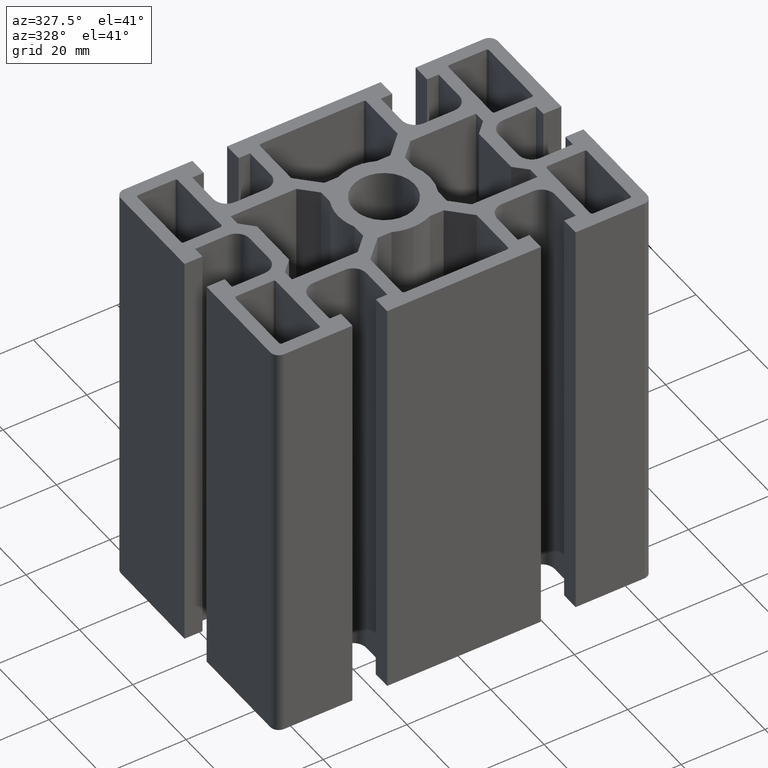
[diagram: clean part render]
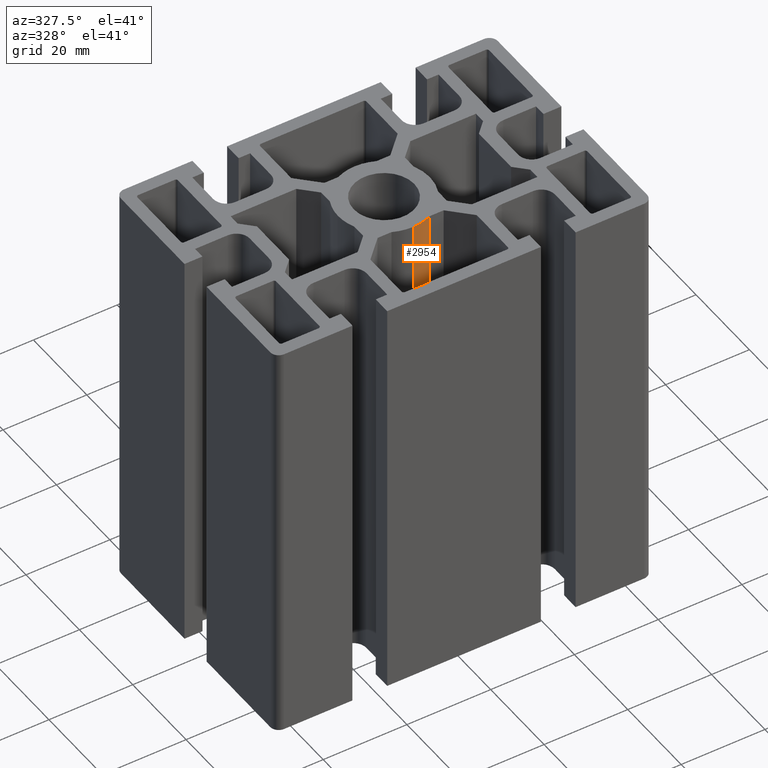
[diagram: same view with one face highlighted and labeled with its STEP entity id]
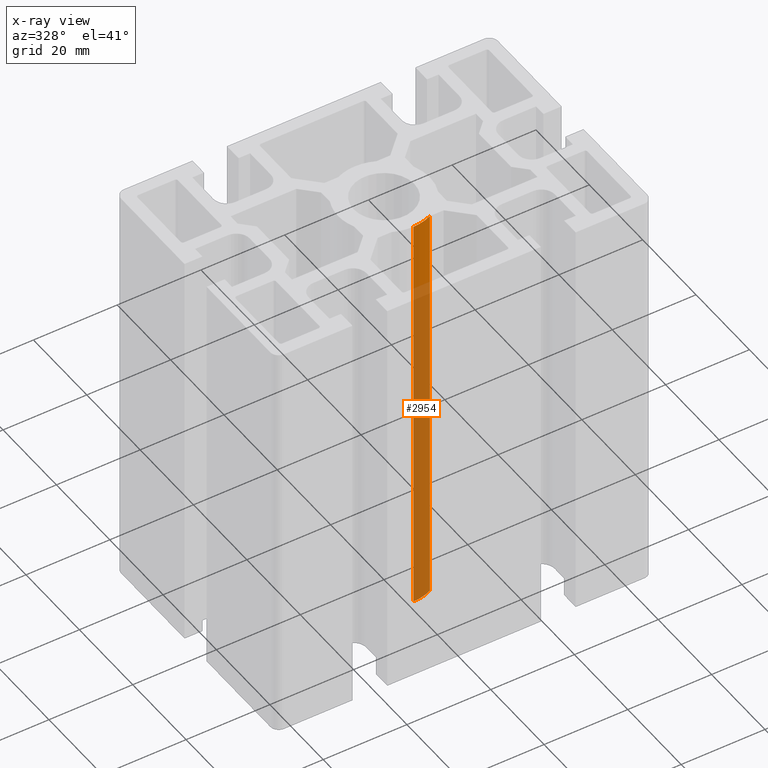
[diagram: x-ray of the same camera — body ghosted, the highlighted face saturated]
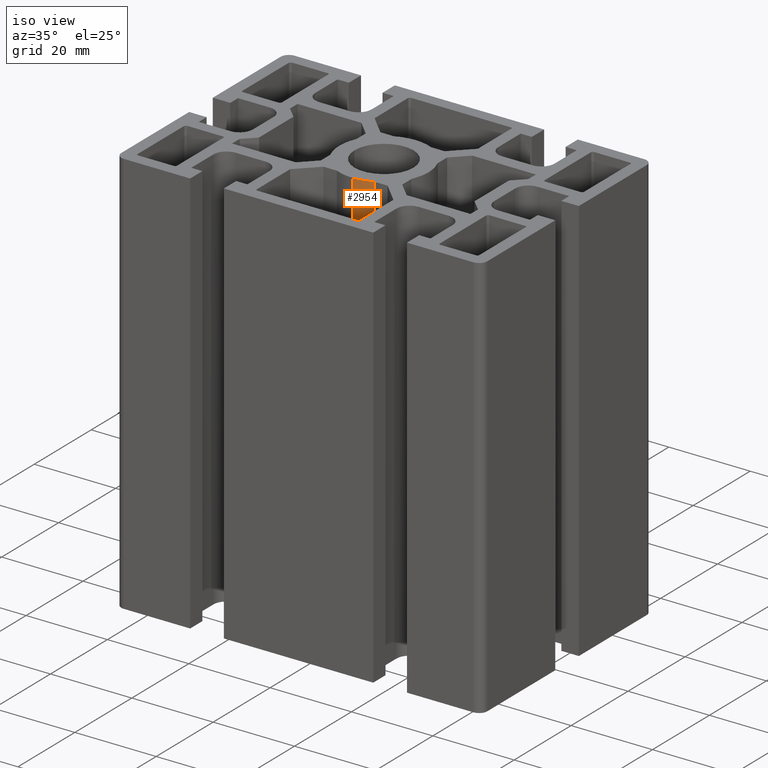
[diagram: same view with one face highlighted and labeled with its STEP entity id]
A machine part, auxiliary view. The second image highlights one B-rep face of the part: STEP entity #2954.
The next image is the same camera in x-ray: the body ghosted, the highlighted face saturated — about 83% of this face is hidden behind the body in this view.
A second angle (iso view) of the same face is appended — the face is thin or edge-on in the first view.
In plain terms, the highlighted cylindrical surface (partial cylindrical patch) has radius 11 mm, axis along (0, 0, 1).
Its self-contained STEP definition (entity closure, byte-faithful):
#146=FACE_OUTER_BOUND('',#297,.T.);
#297=EDGE_LOOP('',(#2036,#2037,#2038,#2039));
#474=LINE('',#4226,#831);
#475=LINE('',#4232,#832);
#831=VECTOR('',#3382,100.);
#832=VECTOR('',#3389,100.);
#1179=CIRCLE('',#3114,11.);
#1180=CIRCLE('',#3115,11.);
#1277=VERTEX_POINT('',#4223);
#1278=VERTEX_POINT('',#4225);
#1279=VERTEX_POINT('',#4229);
#1280=VERTEX_POINT('',#4231);
#1581=EDGE_CURVE('',#1277,#1278,#474,.T.);
#1583=EDGE_CURVE('',#1279,#1277,#1179,.T.);
#1584=EDGE_CURVE('',#1279,#1280,#475,.T.);
#1585=EDGE_CURVE('',#1278,#1280,#1180,.T.);
#2036=ORIENTED_EDGE('',*,*,#1583,.F.);
#2037=ORIENTED_EDGE('',*,*,#1584,.T.);
#2038=ORIENTED_EDGE('',*,*,#1585,.F.);
#2039=ORIENTED_EDGE('',*,*,#1581,.F.);
#2905=CYLINDRICAL_SURFACE('',#3113,11.);
#2954=ADVANCED_FACE('',(#146),#2905,.T.);
#3113=AXIS2_PLACEMENT_3D('',#4228,#3385,#3386);
#3114=AXIS2_PLACEMENT_3D('',#4230,#3387,#3388);
#3115=AXIS2_PLACEMENT_3D('',#4233,#3390,#3391);
#3382=DIRECTION('',(0.,0.,1.));
#3385=DIRECTION('center_axis',(0.,0.,1.));
#3386=DIRECTION('ref_axis',(-9.39297381793732E-8,0.999999999999996,0.));
#3387=DIRECTION('center_axis',(0.,0.,-1.));
#3388=DIRECTION('ref_axis',(-9.39297381793732E-8,0.999999999999996,0.));
#3389=DIRECTION('',(0.,0.,1.));
#3390=DIRECTION('center_axis',(0.,0.,1.));
#3391=DIRECTION('ref_axis',(-9.39297381793732E-8,0.999999999999996,0.));
#4223=CARTESIAN_POINT('',(1.07898546958252E-6,-11.,0.));
#4225=CARTESIAN_POINT('',(1.07898546986007E-6,-11.,100.));
#4226=CARTESIAN_POINT('',(1.07898546958252E-6,-11.,0.));
#4228=CARTESIAN_POINT('Origin',(4.57583496094038E-8,1.11022302460598E-14,
0.));
#4229=CARTESIAN_POINT('',(4.58257574179146,-9.99999999955609,0.));
#4230=CARTESIAN_POINT('Origin',(4.57583496094038E-8,1.11022302460598E-14,
0.));
#4231=CARTESIAN_POINT('',(4.58257574179146,-9.99999999955609,100.));
#4232=CARTESIAN_POINT('',(4.58257574179146,-9.99999999955609,0.));
#4233=CARTESIAN_POINT('Origin',(4.57583496094038E-8,1.11022302460598E-14,
100.));